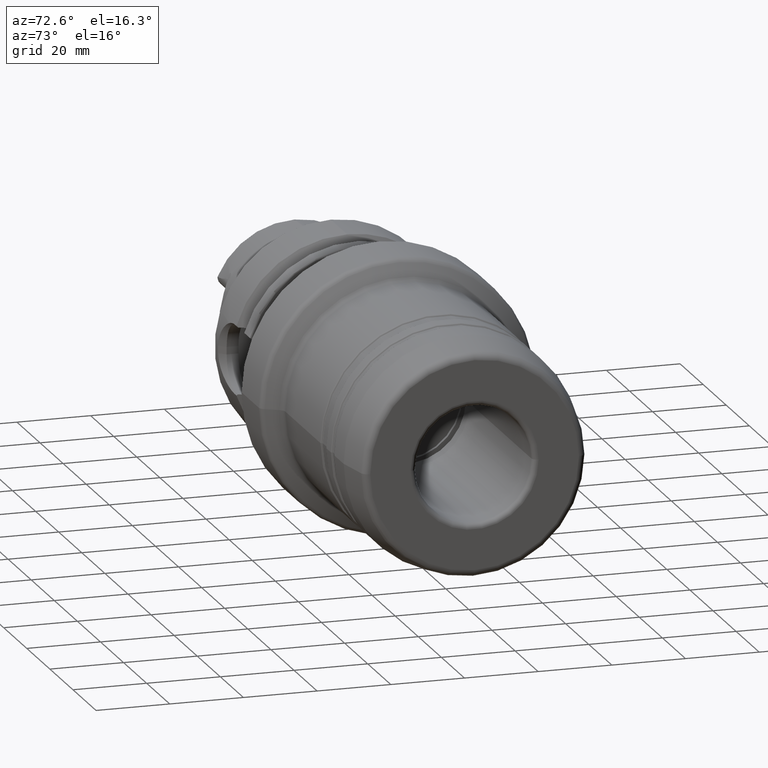
[diagram: clean part render]
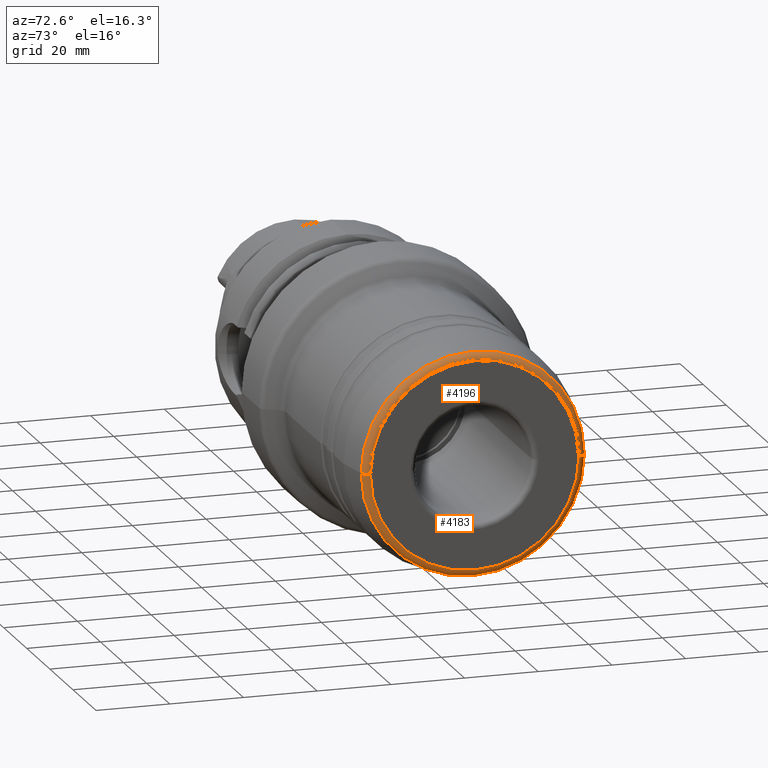
[diagram: same view with one multi-face feature highlighted, each face labeled with its STEP entity id]
A machine part, auxiliary view. The highlighted faces form ONE feature: a constant-radius fillet chain: 2 tangent blend faces with common blend radius 2.0066 mm. The faces share edges in the B-rep.
Their STEP definitions:
[1] entity #4196 (Torus):
#521=CARTESIAN_POINT('',(4.921E0,0.E0,0.E0));
#522=DIRECTION('',(1.E0,0.E0,0.E0));
#523=DIRECTION('',(0.E0,1.E0,7.378845270772E-9));
#524=AXIS2_PLACEMENT_3D('',#521,#522,#523);
#536=CARTESIAN_POINT('',(4.842E0,-1.114892968760E0,-8.226624310589E-9));
#537=DIRECTION('',(0.E0,7.378846705527E-9,-1.E0));
#538=DIRECTION('',(1.E0,0.E0,0.E0));
#539=AXIS2_PLACEMENT_3D('',#536,#537,#538);
#541=CARTESIAN_POINT('',(4.842E0,1.114892968760E0,8.226623705171E-9));
#542=DIRECTION('',(0.E0,-7.378846160824E-9,1.E0));
#543=DIRECTION('',(1.E0,0.E0,0.E0));
#544=AXIS2_PLACEMENT_3D('',#541,#542,#543);
#546=CARTESIAN_POINT('',(4.855718206036E0,0.E0,0.E0));
#547=DIRECTION('',(1.E0,0.E0,0.E0));
#548=DIRECTION('',(0.E0,1.E0,-2.336049515388E-10));
#549=AXIS2_PLACEMENT_3D('',#546,#547,#548);
#3436=CARTESIAN_POINT('',(4.921E0,-1.114892968760E0,-8.226622970267E-9));
#3437=CARTESIAN_POINT('',(4.921E0,1.114892968760E0,8.226622833732E-9));
#3438=VERTEX_POINT('',#3436);
#3439=VERTEX_POINT('',#3437);
#3440=CARTESIAN_POINT('',(4.855718206036E0,-1.192692781248E0,
2.786193502580E-10));
#3441=CARTESIAN_POINT('',(4.855718206036E0,1.192692781248E0,
-2.786189666587E-10));
#3442=VERTEX_POINT('',#3440);
#3443=VERTEX_POINT('',#3441);
#4184=CARTESIAN_POINT('',(4.842E0,0.E0,0.E0));
#4185=DIRECTION('',(-1.E0,0.E0,0.E0));
#4186=DIRECTION('',(0.E0,9.999108369602E-1,-1.335358114960E-2));
#4187=AXIS2_PLACEMENT_3D('',#4184,#4185,#4186);
#4188=TOROIDAL_SURFACE('',#4187,1.114892968760E0,7.9E-2);
#4189=ORIENTED_EDGE('',*,*,#4159,.T.);
#4190=ORIENTED_EDGE('',*,*,#4179,.T.);
#4192=ORIENTED_EDGE('',*,*,#4191,.F.);
#4193=ORIENTED_EDGE('',*,*,#4175,.F.);
#4194=EDGE_LOOP('',(#4189,#4190,#4192,#4193));
#4195=FACE_OUTER_BOUND('',#4194,.F.);
#4196=ADVANCED_FACE('',(#4195),#4188,.T.);
#525=CIRCLE('',#524,1.114892968760E0);
#540=CIRCLE('',#539,7.9E-2);
#545=CIRCLE('',#544,7.9E-2);
#550=CIRCLE('',#549,1.192692781248E0);
#4159=EDGE_CURVE('',#3439,#3438,#525,.T.);
#4175=EDGE_CURVE('',#3439,#3443,#545,.T.);
#4179=EDGE_CURVE('',#3438,#3442,#540,.T.);
#4191=EDGE_CURVE('',#3443,#3442,#550,.T.);
[2] entity #4183 (Torus):
#516=CARTESIAN_POINT('',(4.921E0,0.E0,0.E0));
#517=DIRECTION('',(1.E0,0.E0,0.E0));
#518=DIRECTION('',(0.E0,-1.E0,-7.378845504259E-9));
#519=AXIS2_PLACEMENT_3D('',#516,#517,#518);
#536=CARTESIAN_POINT('',(4.842E0,-1.114892968760E0,-8.226624310589E-9));
#537=DIRECTION('',(0.E0,7.378846705527E-9,-1.E0));
#538=DIRECTION('',(1.E0,0.E0,0.E0));
#539=AXIS2_PLACEMENT_3D('',#536,#537,#538);
#541=CARTESIAN_POINT('',(4.842E0,1.114892968760E0,8.226623705171E-9));
#542=DIRECTION('',(0.E0,-7.378846160824E-9,1.E0));
#543=DIRECTION('',(1.E0,0.E0,0.E0));
#544=AXIS2_PLACEMENT_3D('',#541,#542,#543);
#560=CARTESIAN_POINT('',(4.855718206036E0,0.E0,0.E0));
#561=DIRECTION('',(1.E0,0.E0,0.E0));
#562=DIRECTION('',(0.E0,-1.E0,2.336052960481E-10));
#563=AXIS2_PLACEMENT_3D('',#560,#561,#562);
#3436=CARTESIAN_POINT('',(4.921E0,-1.114892968760E0,-8.226622970267E-9));
#3437=CARTESIAN_POINT('',(4.921E0,1.114892968760E0,8.226622833732E-9));
#3438=VERTEX_POINT('',#3436);
#3439=VERTEX_POINT('',#3437);
#3440=CARTESIAN_POINT('',(4.855718206036E0,-1.192692781248E0,
2.786193502580E-10));
#3441=CARTESIAN_POINT('',(4.855718206036E0,1.192692781248E0,
-2.786189666587E-10));
#3442=VERTEX_POINT('',#3440);
#3443=VERTEX_POINT('',#3441);
#4169=CARTESIAN_POINT('',(4.842E0,0.E0,0.E0));
#4170=DIRECTION('',(-1.E0,0.E0,0.E0));
#4171=DIRECTION('',(0.E0,-9.999108369602E-1,1.335358114960E-2));
#4172=AXIS2_PLACEMENT_3D('',#4169,#4170,#4171);
#4173=TOROIDAL_SURFACE('',#4172,1.114892968760E0,7.9E-2);
#4174=ORIENTED_EDGE('',*,*,#4157,.T.);
#4176=ORIENTED_EDGE('',*,*,#4175,.T.);
#4178=ORIENTED_EDGE('',*,*,#4177,.F.);
#4180=ORIENTED_EDGE('',*,*,#4179,.F.);
#4181=EDGE_LOOP('',(#4174,#4176,#4178,#4180));
#4182=FACE_OUTER_BOUND('',#4181,.F.);
#4183=ADVANCED_FACE('',(#4182),#4173,.T.);
#520=CIRCLE('',#519,1.114892968760E0);
#540=CIRCLE('',#539,7.9E-2);
#545=CIRCLE('',#544,7.9E-2);
#564=CIRCLE('',#563,1.192692781248E0);
#4157=EDGE_CURVE('',#3438,#3439,#520,.T.);
#4175=EDGE_CURVE('',#3439,#3443,#545,.T.);
#4177=EDGE_CURVE('',#3442,#3443,#564,.T.);
#4179=EDGE_CURVE('',#3438,#3442,#540,.T.);